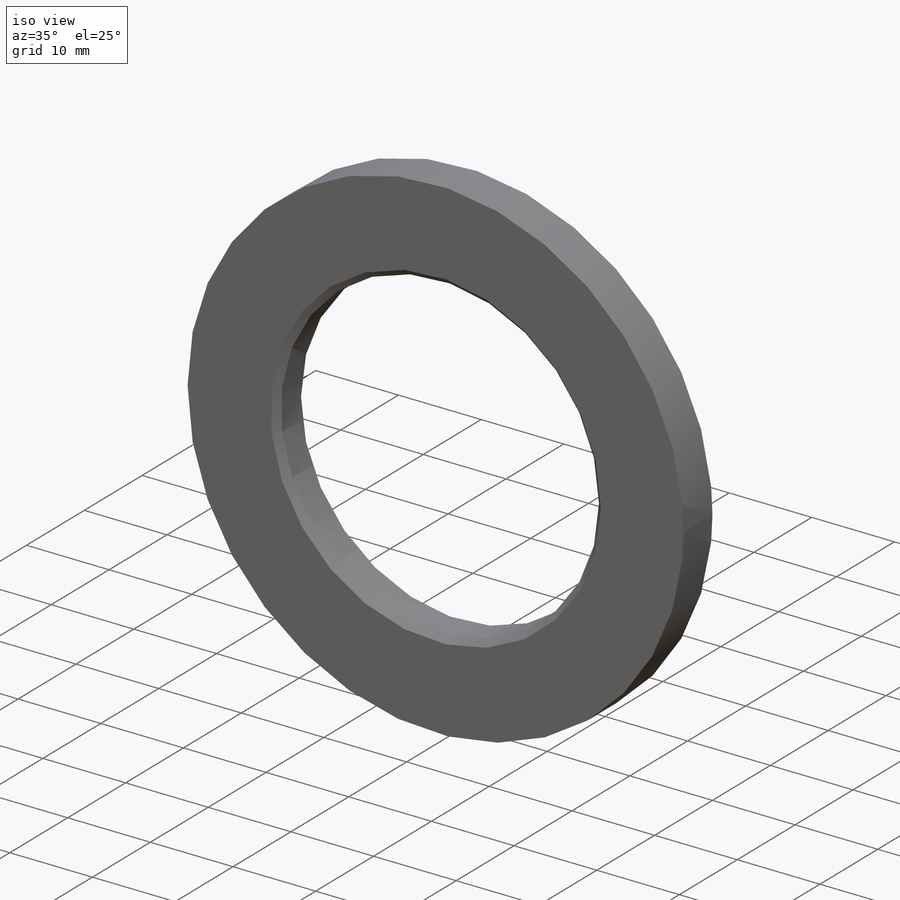
[diagram: iso view]
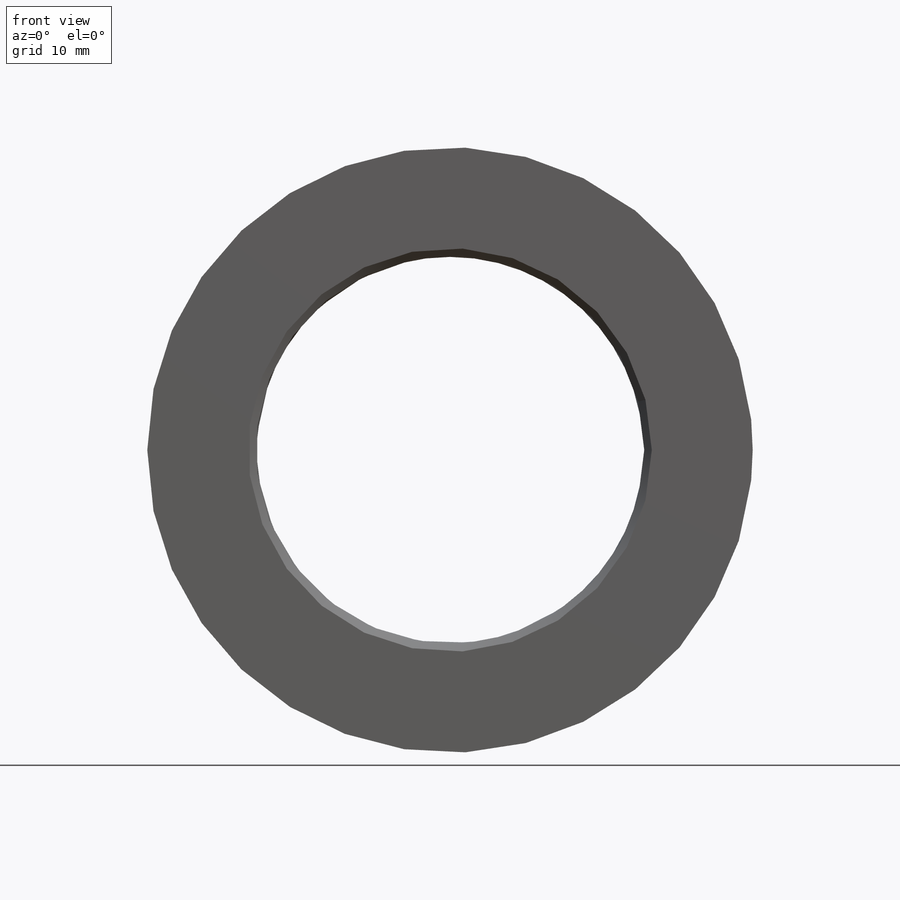
[diagram: front view]
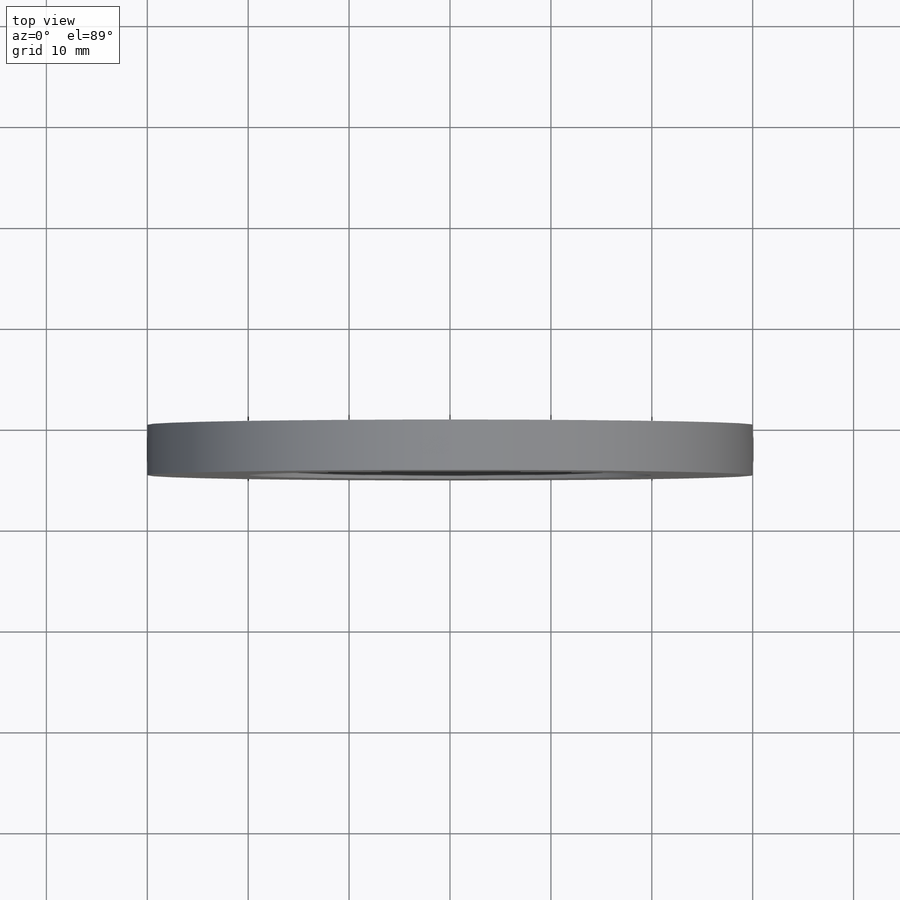
[diagram: top view]
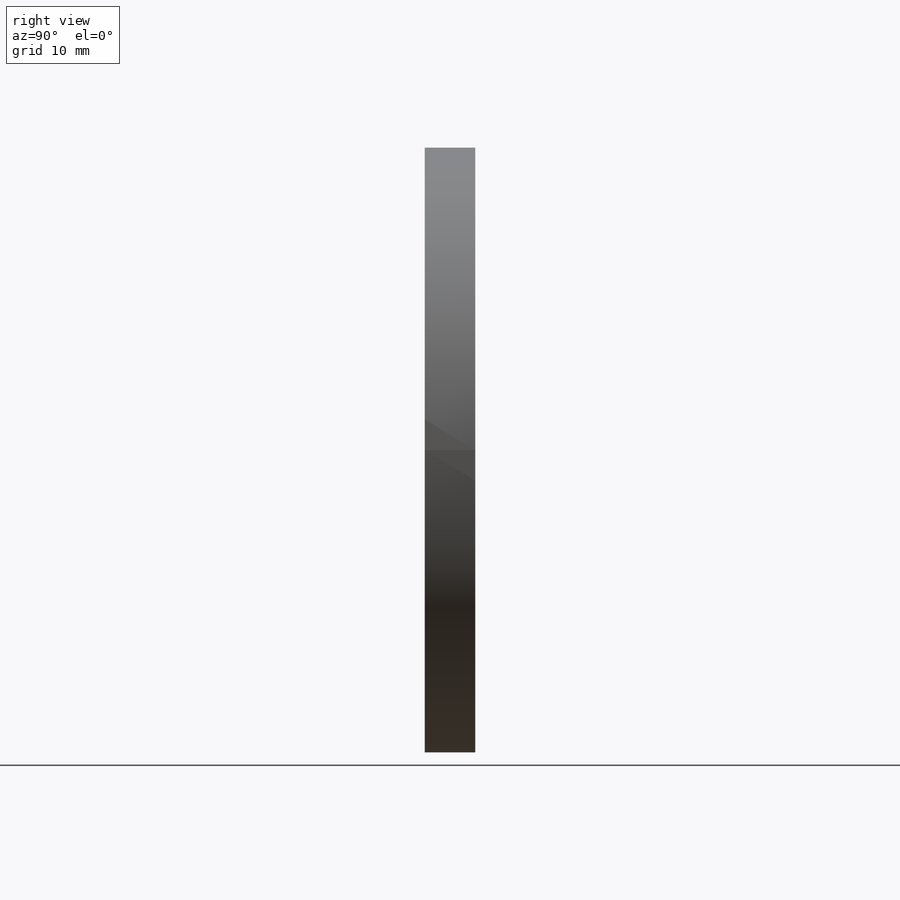
[diagram: right view]
SOLIDWORKS PART (.sldprt)
format: sldprt  version: not decoded by parser v0  size: 205,824 bytes
history: native  units: mm
features: sketch x3, material x1, extrude x1, cut_extrude x1, cut_revolve x1 (+12 scaffold rows collapsed)
feature tree (19):
  scaffold x12  (default folders/planes/origin — collapsed)
  material  "Material <not specified>"
  sketch  "Guard base"  dims[D1=60.0mm]
  extrude  "Guard"  Depth=5mm
  sketch  "Axle hole base"  dims[D1=38.5mm]
  cut_extrude  "Axle hole"  [1 undecoded]
  sketch  "Mate ring room base"  dims[D1=0.75mm]
  cut_revolve  "Mate ring room"  Angle=360deg
decode coverage: 5 of 6 modeling features carry decoded parameters
note: 1 parameter value undecoded
note: suppression state not decoded; provenance and decode notes live in map.json
